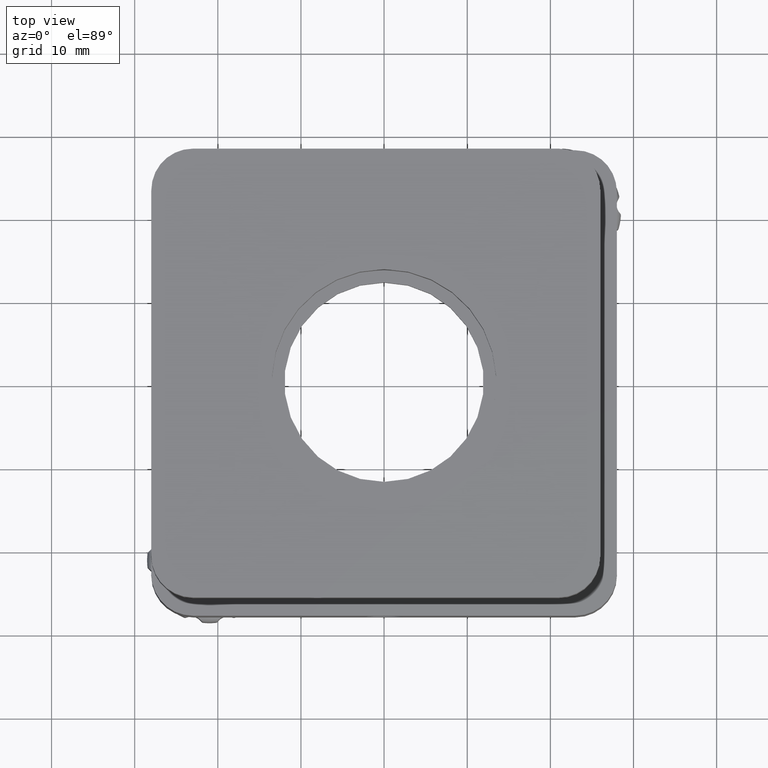
[diagram: clean part render]
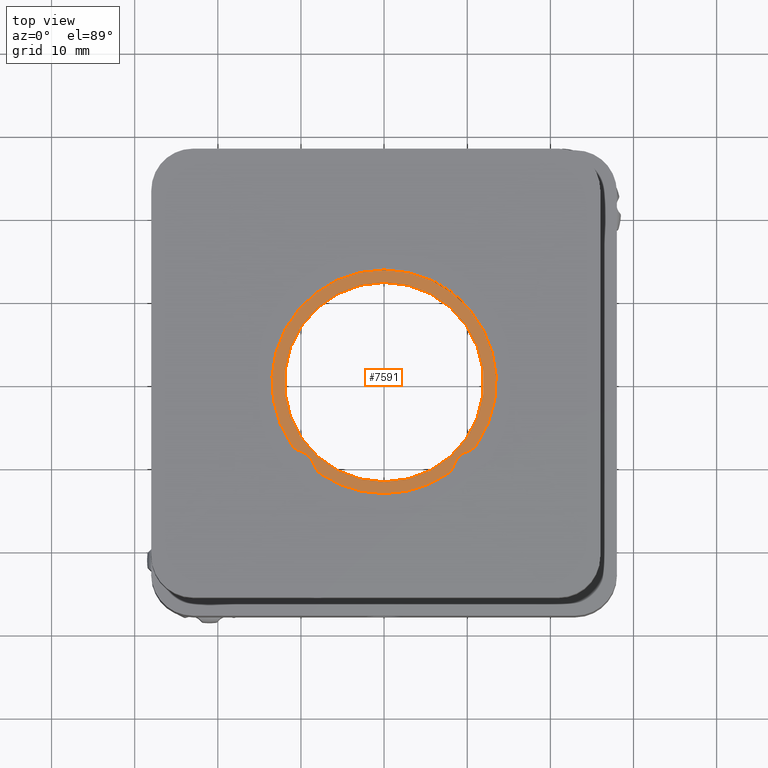
[diagram: same view with one face highlighted and labeled with its STEP entity id]
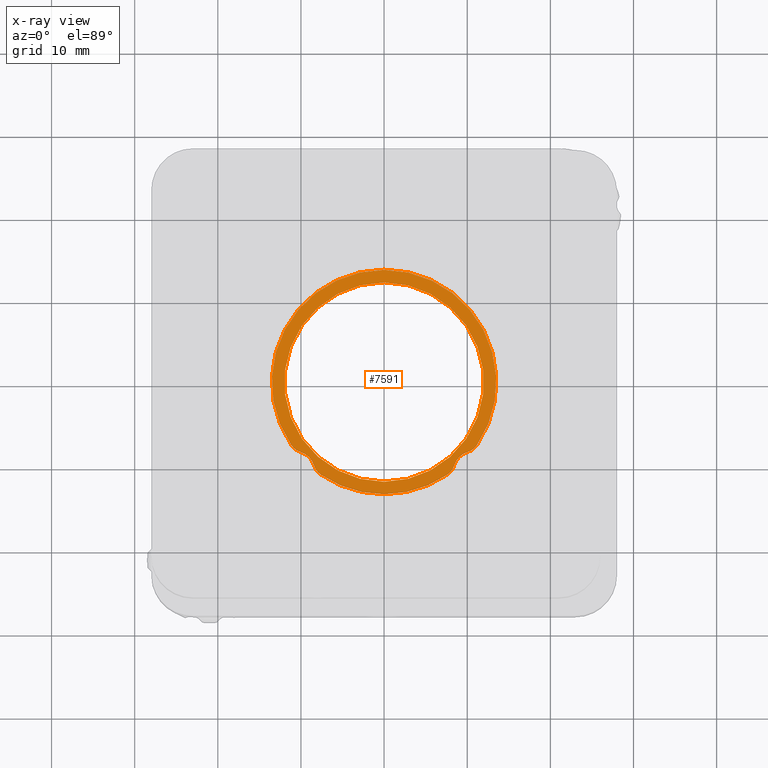
[diagram: x-ray of the same camera — body ghosted, the highlighted face saturated]
A machine part, top view. The second image highlights one B-rep face of the part: STEP entity #7591.
The next image is the same camera in x-ray: the body ghosted, the highlighted face saturated — about 0% of this face is hidden behind the body in this view.
In plain terms, the highlighted planar face has unit normal (-0, 0, 1).
Its self-contained STEP definition (entity closure, byte-faithful):
#257 = CARTESIAN_POINT ( 'NONE',  ( 10.07245123566767800, -8.408207200546314700, 3.000000000000000000 ) ) ;
#681 = DIRECTION ( 'NONE',  ( 2.220446049250312600E-016, 1.000000000000000000, 0.0000000000000000000 ) ) ;
#802 = EDGE_CURVE ( 'NONE', #6150, #1548, #14946, .T. ) ;
#972 = DIRECTION ( 'NONE',  ( -0.0000000000000000000, 0.0000000000000000000, 1.000000000000000000 ) ) ;
#1256 = EDGE_CURVE ( 'NONE', #10938, #6906, #8789, .T. ) ;
#1351 = CARTESIAN_POINT ( 'NONE',  ( 10.80000000000000100, -10.80000000000000200, 3.000000000000000000 ) ) ;
#1402 = CARTESIAN_POINT ( 'NONE',  ( 0.0000000000000000000, 0.0000000000000000000, 3.000000000000000000 ) ) ;
#1548 = VERTEX_POINT ( 'NONE', #257 ) ;
#1794 = DIRECTION ( 'NONE',  ( 0.0000000000000000000, -0.0000000000000000000, -1.000000000000000000 ) ) ;
#2169 = CARTESIAN_POINT ( 'NONE',  ( 2.997602166487921900E-015, 13.50000000000000000, 3.000000000000000000 ) ) ;
#2450 = AXIS2_PLACEMENT_3D ( 'NONE', #4416, #12158, #13525 ) ;
#2657 = ORIENTED_EDGE ( 'NONE', *, *, #4762, .T. ) ;
#2767 = ORIENTED_EDGE ( 'NONE', *, *, #11695, .T. ) ;
#3154 = EDGE_CURVE ( 'NONE', #4092, #9572, #7429, .T. ) ;
#3470 = VERTEX_POINT ( 'NONE', #12898 ) ;
#3528 = AXIS2_PLACEMENT_3D ( 'NONE', #5501, #12115, #14694 ) ;
#3578 = CIRCLE ( 'NONE', #10255, 13.50000000000000000 ) ;
#4042 = DIRECTION ( 'NONE',  ( -0.0000000000000000000, 0.0000000000000000000, 1.000000000000000000 ) ) ;
#4063 = AXIS2_PLACEMENT_3D ( 'NONE', #1402, #10771, #17374 ) ;
#4092 = VERTEX_POINT ( 'NONE', #12401 ) ;
#4101 = VERTEX_POINT ( 'NONE', #7198 ) ;
#4394 = CARTESIAN_POINT ( 'NONE',  ( 11.14091869797605100, -7.624298693328299200, 3.000000000000000000 ) ) ;
#4408 = CARTESIAN_POINT ( 'NONE',  ( -0.0000000000000000000, 0.0000000000000000000, 3.000000000000000000 ) ) ;
#4416 = CARTESIAN_POINT ( 'NONE',  ( 9.490412224201820700, -6.494772960983365100, 3.000000000000000000 ) ) ;
#4455 = DIRECTION ( 'NONE',  ( 2.220446049250312300E-016, 1.000000000000000000, 0.0000000000000000000 ) ) ;
#4476 = ORIENTED_EDGE ( 'NONE', *, *, #6805, .T. ) ;
#4511 = CIRCLE ( 'NONE', #15594, 12.00000000000000200 ) ;
#4762 = EDGE_CURVE ( 'NONE', #8376, #11204, #3578, .T. ) ;
#5003 = VERTEX_POINT ( 'NONE', #13194 ) ;
#5129 = DIRECTION ( 'NONE',  ( 0.0000000000000000000, -0.0000000000000000000, -1.000000000000000000 ) ) ;
#5335 = AXIS2_PLACEMENT_3D ( 'NONE', #12900, #972, #13078 ) ;
#5357 = DIRECTION ( 'NONE',  ( -0.0000000000000000000, 0.0000000000000000000, 1.000000000000000000 ) ) ;
#5361 = ORIENTED_EDGE ( 'NONE', *, *, #16820, .T. ) ;
#5501 = CARTESIAN_POINT ( 'NONE',  ( 6.494772960983362400, -9.490412224201824300, 3.000000000000000000 ) ) ;
#5592 = EDGE_CURVE ( 'NONE', #5003, #4092, #13412, .T. ) ;
#6150 = VERTEX_POINT ( 'NONE', #9403 ) ;
#6288 = CIRCLE ( 'NONE', #5335, 13.50000000000000000 ) ;
#6722 = DIRECTION ( 'NONE',  ( 2.220446049250312600E-016, 1.000000000000000000, 0.0000000000000000000 ) ) ;
#6805 = EDGE_CURVE ( 'NONE', #1548, #8376, #8990, .T. ) ;
#6858 = FACE_BOUND ( 'NONE', #8124, .T. ) ;
#6867 = ORIENTED_EDGE ( 'NONE', *, *, #1256, .T. ) ;
#6906 = VERTEX_POINT ( 'NONE', #13874 ) ;
#6966 = CARTESIAN_POINT ( 'NONE',  ( -10.79999999999999900, -10.79999999999999900, 3.000000000000000000 ) ) ;
#7198 = CARTESIAN_POINT ( 'NONE',  ( 7.624298693328294800, -11.14091869797605300, 3.000000000000000000 ) ) ;
#7266 = CIRCLE ( 'NONE', #3528, 2.000000000000000000 ) ;
#7314 = CARTESIAN_POINT ( 'NONE',  ( -7.624298693328298300, -11.14091869797605100, 3.000000000000000000 ) ) ;
#7429 = CIRCLE ( 'NONE', #8000, 2.000000000000000000 ) ;
#7591 = ADVANCED_FACE ( 'NONE', ( #12228, #6858 ), #16026, .T. ) ;
#7941 = ORIENTED_EDGE ( 'NONE', *, *, #14796, .T. ) ;
#8000 = AXIS2_PLACEMENT_3D ( 'NONE', #8033, #4042, #13512 ) ;
#8033 = CARTESIAN_POINT ( 'NONE',  ( -6.494772960983365100, -9.490412224201822500, 3.000000000000000000 ) ) ;
#8124 = EDGE_LOOP ( 'NONE', ( #11670, #6867 ) ) ;
#8347 = CIRCLE ( 'NONE', #14612, 13.50000000000000000 ) ;
#8376 = VERTEX_POINT ( 'NONE', #4394 ) ;
#8789 = CIRCLE ( 'NONE', #13824, 12.00000000000000200 ) ;
#8813 = CARTESIAN_POINT ( 'NONE',  ( -0.0000000000000000000, 0.0000000000000000000, 3.000000000000000000 ) ) ;
#8967 = DIRECTION ( 'NONE',  ( -0.0000000000000000000, 0.0000000000000000000, 1.000000000000000000 ) ) ;
#8990 = CIRCLE ( 'NONE', #2450, 2.000000000000000000 ) ;
#9090 = EDGE_LOOP ( 'NONE', ( #2657, #11363, #5361, #13285, #16761, #2767, #7941, #12239, #4476 ) ) ;
#9189 = DIRECTION ( 'NONE',  ( 2.220446049250312300E-016, 1.000000000000000000, 0.0000000000000000000 ) ) ;
#9309 = AXIS2_PLACEMENT_3D ( 'NONE', #16732, #8967, #16920 ) ;
#9370 = CARTESIAN_POINT ( 'NONE',  ( -0.0000000000000000000, 0.0000000000000000000, 3.000000000000000000 ) ) ;
#9403 = CARTESIAN_POINT ( 'NONE',  ( 8.408207200546311100, -10.07245123566768200, 3.000000000000000000 ) ) ;
#9572 = VERTEX_POINT ( 'NONE', #7314 ) ;
#9631 = DIRECTION ( 'NONE',  ( 0.0000000000000000000, -0.0000000000000000000, -1.000000000000000000 ) ) ;
#9945 = DIRECTION ( 'NONE',  ( -0.0000000000000000000, 0.0000000000000000000, 1.000000000000000000 ) ) ;
#10106 = CIRCLE ( 'NONE', #9309, 2.000000000000000000 ) ;
#10255 = AXIS2_PLACEMENT_3D ( 'NONE', #9370, #5357, #6722 ) ;
#10771 = DIRECTION ( 'NONE',  ( -0.0000000000000000000, 0.0000000000000000000, 1.000000000000000000 ) ) ;
#10860 = EDGE_CURVE ( 'NONE', #11204, #3470, #6288, .T. ) ;
#10938 = VERTEX_POINT ( 'NONE', #14390 ) ;
#11204 = VERTEX_POINT ( 'NONE', #2169 ) ;
#11363 = ORIENTED_EDGE ( 'NONE', *, *, #10860, .T. ) ;
#11670 = ORIENTED_EDGE ( 'NONE', *, *, #15151, .T. ) ;
#11695 = EDGE_CURVE ( 'NONE', #9572, #4101, #8347, .T. ) ;
#11744 = DIRECTION ( 'NONE',  ( 0.0000000000000000000, 1.000000000000000000, 0.0000000000000000000 ) ) ;
#12115 = DIRECTION ( 'NONE',  ( -0.0000000000000000000, 0.0000000000000000000, 1.000000000000000000 ) ) ;
#12116 = DIRECTION ( 'NONE',  ( 0.0000000000000000000, 1.000000000000000000, 0.0000000000000000000 ) ) ;
#12158 = DIRECTION ( 'NONE',  ( -0.0000000000000000000, 0.0000000000000000000, 1.000000000000000000 ) ) ;
#12228 = FACE_OUTER_BOUND ( 'NONE', #9090, .T. ) ;
#12239 = ORIENTED_EDGE ( 'NONE', *, *, #802, .T. ) ;
#12401 = CARTESIAN_POINT ( 'NONE',  ( -8.408207200546309300, -10.07245123566767800, 3.000000000000000000 ) ) ;
#12898 = CARTESIAN_POINT ( 'NONE',  ( -11.14091869797605300, -7.624298693328295700, 3.000000000000000000 ) ) ;
#12900 = CARTESIAN_POINT ( 'NONE',  ( -0.0000000000000000000, 0.0000000000000000000, 3.000000000000000000 ) ) ;
#13078 = DIRECTION ( 'NONE',  ( 2.220446049250312600E-016, 1.000000000000000000, 0.0000000000000000000 ) ) ;
#13194 = CARTESIAN_POINT ( 'NONE',  ( -10.07245123566767800, -8.408207200546309300, 3.000000000000000000 ) ) ;
#13285 = ORIENTED_EDGE ( 'NONE', *, *, #5592, .T. ) ;
#13412 = CIRCLE ( 'NONE', #15523, 2.500000000000000400 ) ;
#13471 = AXIS2_PLACEMENT_3D ( 'NONE', #1351, #5129, #11744 ) ;
#13512 = DIRECTION ( 'NONE',  ( 4.336808689942017700E-016, 1.000000000000000000, 0.0000000000000000000 ) ) ;
#13525 = DIRECTION ( 'NONE',  ( 0.0000000000000000000, 1.000000000000000000, 0.0000000000000000000 ) ) ;
#13824 = AXIS2_PLACEMENT_3D ( 'NONE', #16907, #17180, #9189 ) ;
#13874 = CARTESIAN_POINT ( 'NONE',  ( -2.664535259100375300E-015, -12.00000000000000200, 3.000000000000000000 ) ) ;
#14390 = CARTESIAN_POINT ( 'NONE',  ( 1.194959100123551600E-015, 12.00000000000000200, 3.000000000000000000 ) ) ;
#14612 = AXIS2_PLACEMENT_3D ( 'NONE', #8813, #9945, #681 ) ;
#14694 = DIRECTION ( 'NONE',  ( 4.336808689942017700E-016, 1.000000000000000000, 0.0000000000000000000 ) ) ;
#14796 = EDGE_CURVE ( 'NONE', #4101, #6150, #7266, .T. ) ;
#14946 = CIRCLE ( 'NONE', #13471, 2.500000000000000400 ) ;
#15151 = EDGE_CURVE ( 'NONE', #6906, #10938, #4511, .T. ) ;
#15523 = AXIS2_PLACEMENT_3D ( 'NONE', #6966, #9631, #12116 ) ;
#15594 = AXIS2_PLACEMENT_3D ( 'NONE', #4408, #1794, #4455 ) ;
#16026 = PLANE ( 'NONE',  #4063 ) ;
#16732 = CARTESIAN_POINT ( 'NONE',  ( -9.490412224201824300, -6.494772960983364200, 3.000000000000000000 ) ) ;
#16761 = ORIENTED_EDGE ( 'NONE', *, *, #3154, .T. ) ;
#16820 = EDGE_CURVE ( 'NONE', #3470, #5003, #10106, .T. ) ;
#16907 = CARTESIAN_POINT ( 'NONE',  ( -0.0000000000000000000, 0.0000000000000000000, 3.000000000000000000 ) ) ;
#16920 = DIRECTION ( 'NONE',  ( 0.0000000000000000000, 1.000000000000000000, 0.0000000000000000000 ) ) ;
#17180 = DIRECTION ( 'NONE',  ( 0.0000000000000000000, -0.0000000000000000000, -1.000000000000000000 ) ) ;
#17374 = DIRECTION ( 'NONE',  ( 2.220446049250312600E-016, 1.000000000000000000, 0.0000000000000000000 ) ) ;